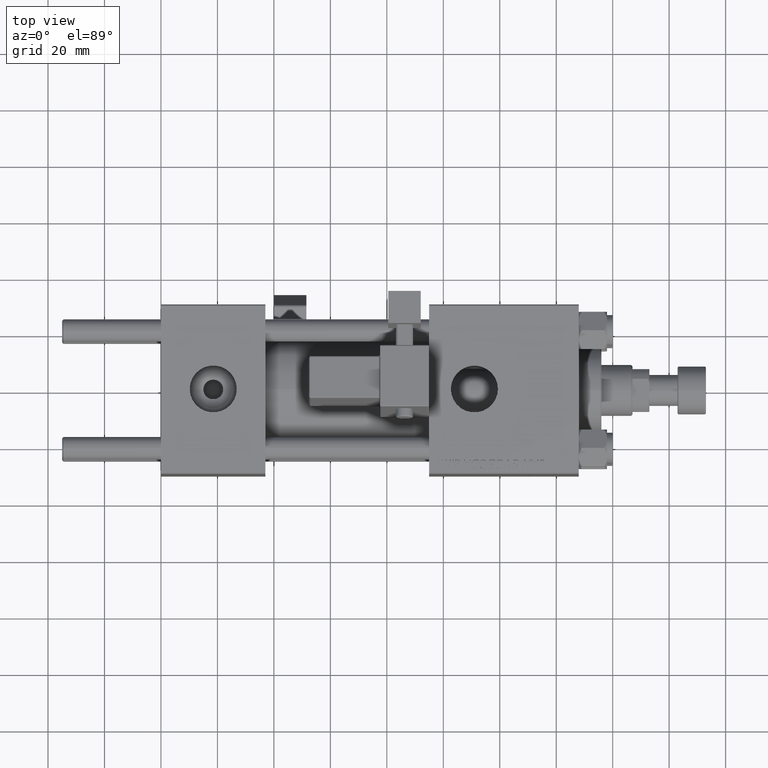
[diagram: clean part render]
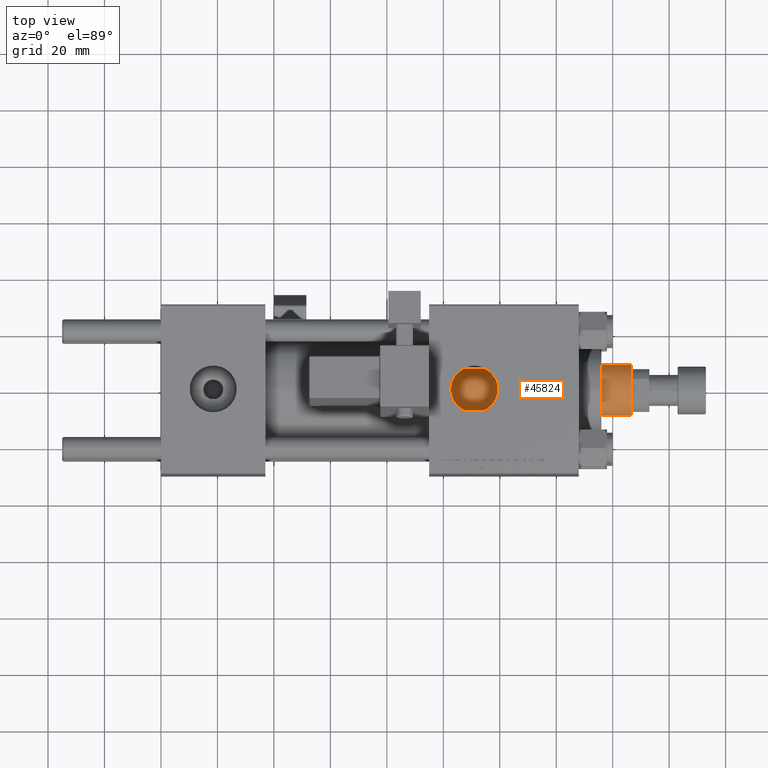
[diagram: same view with one face highlighted and labeled with its STEP entity id]
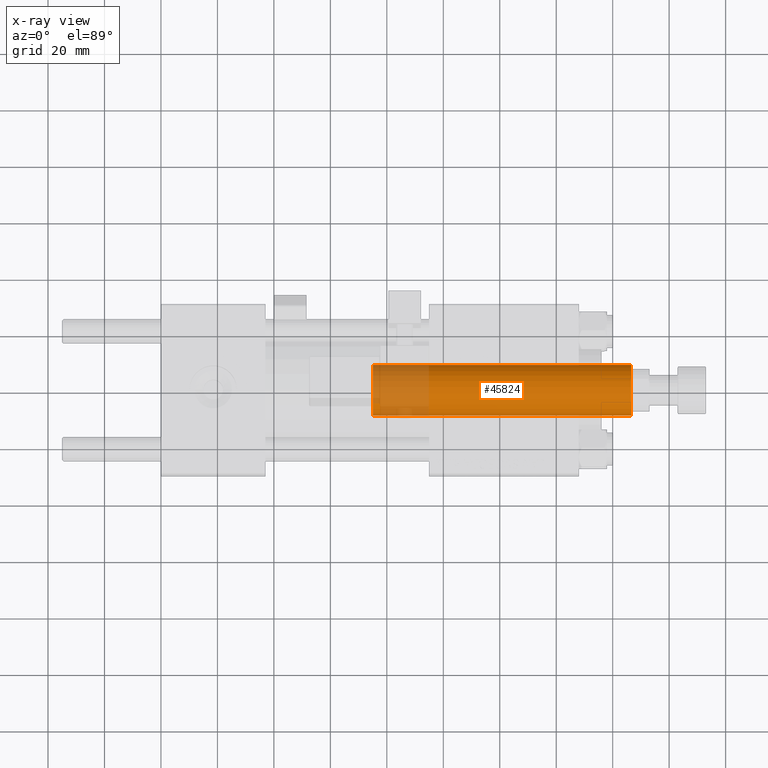
[diagram: x-ray of the same camera — body ghosted, the highlighted face saturated]
A machine part, top view. The second image highlights one B-rep face of the part: STEP entity #45824.
The next image is the same camera in x-ray: the body ghosted, the highlighted face saturated — about 22% of this face is hidden behind the body in this view.
In plain terms, the highlighted cylindrical surface (edge-blend (fillet) strip) has radius 9 mm, axis along (-1, 0, 0).
Its self-contained STEP definition (entity closure, byte-faithful):
#1150 = DIRECTION ( 'NONE',  ( 1.000000000000000000, 0.000000000000000000, 0.000000000000000000 ) ) ;
#1919 = CARTESIAN_POINT ( 'NONE',  ( 0.000000000000000000, 0.000000000000000000, 130.0000000000000000 ) ) ;
#2215 = CARTESIAN_POINT ( 'NONE',  ( 0.000000000000000000, 0.000000000000000000, 129.5000000000000000 ) ) ;
#4947 = VERTEX_POINT ( 'NONE', #52436 ) ;
#5652 = CARTESIAN_POINT ( 'NONE',  ( 9.000000000000000000, 1.102182119232617714E-15, 38.00000000000000000 ) ) ;
#8935 = DIRECTION ( 'NONE',  ( -0.000000000000000000, -0.000000000000000000, -1.000000000000000000 ) ) ;
#9080 = DIRECTION ( 'NONE',  ( -1.000000000000000000, 0.000000000000000000, 0.000000000000000000 ) ) ;
#10376 = CARTESIAN_POINT ( 'NONE',  ( 9.000000000000000000, 1.102182119232617714E-15, 129.5000000000000000 ) ) ;
#10377 = CARTESIAN_POINT ( 'NONE',  ( -9.000000000000000000, 0.000000000000000000, 130.0000000000000000 ) ) ;
#12311 = VECTOR ( 'NONE', #26596, 1000.000000000000000 ) ;
#12321 = CARTESIAN_POINT ( 'NONE',  ( 0.000000000000000000, 0.000000000000000000, 38.00000000000000000 ) ) ;
#14616 = EDGE_CURVE ( 'NONE', #19111, #4947, #36614, .T. ) ;
#15491 = ORIENTED_EDGE ( 'NONE', *, *, #26113, .T. ) ;
#16647 = AXIS2_PLACEMENT_3D ( 'NONE', #1919, #17585, #9080 ) ;
#17585 = DIRECTION ( 'NONE',  ( -0.000000000000000000, -0.000000000000000000, -1.000000000000000000 ) ) ;
#18812 = EDGE_CURVE ( 'NONE', #45061, #30860, #46808, .T. ) ;
#19111 = VERTEX_POINT ( 'NONE', #10376 ) ;
#25607 = AXIS2_PLACEMENT_3D ( 'NONE', #2215, #33796, #1150 ) ;
#26113 = EDGE_CURVE ( 'NONE', #4947, #45061, #46748, .T. ) ;
#26596 = DIRECTION ( 'NONE',  ( -0.000000000000000000, -0.000000000000000000, -1.000000000000000000 ) ) ;
#28499 = EDGE_CURVE ( 'NONE', #19111, #30860, #36290, .T. ) ;
#28533 = DIRECTION ( 'NONE',  ( 0.000000000000000000, 0.000000000000000000, 1.000000000000000000 ) ) ;
#29519 = ORIENTED_EDGE ( 'NONE', *, *, #28499, .F. ) ;
#30860 = VERTEX_POINT ( 'NONE', #5652 ) ;
#33796 = DIRECTION ( 'NONE',  ( 0.000000000000000000, 0.000000000000000000, -1.000000000000000000 ) ) ;
#34028 = FACE_OUTER_BOUND ( 'NONE', #47016, .T. ) ;
#36290 = LINE ( 'NONE', #45040, #46198 ) ;
#36614 = CIRCLE ( 'NONE', #25607, 9.000000000000000000 ) ;
#37509 = ORIENTED_EDGE ( 'NONE', *, *, #14616, .T. ) ;
#38398 = CARTESIAN_POINT ( 'NONE',  ( -9.000000000000000000, 0.000000000000000000, 38.00000000000000000 ) ) ;
#41530 = DIRECTION ( 'NONE',  ( 1.000000000000000000, 0.000000000000000000, 0.000000000000000000 ) ) ;
#41742 = AXIS2_PLACEMENT_3D ( 'NONE', #12321, #28533, #41530 ) ;
#42265 = CYLINDRICAL_SURFACE ( 'NONE', #16647, 9.000000000000000000 ) ;
#44745 = ORIENTED_EDGE ( 'NONE', *, *, #18812, .T. ) ;
#45040 = CARTESIAN_POINT ( 'NONE',  ( 9.000000000000000000, 1.102182119232617714E-15, 130.0000000000000000 ) ) ;
#45061 = VERTEX_POINT ( 'NONE', #38398 ) ;
#45824 = ADVANCED_FACE ( 'NONE', ( #34028 ), #42265, .T. ) ;
#46198 = VECTOR ( 'NONE', #8935, 1000.000000000000000 ) ;
#46748 = LINE ( 'NONE', #10377, #12311 ) ;
#46808 = CIRCLE ( 'NONE', #41742, 9.000000000000000000 ) ;
#47016 = EDGE_LOOP ( 'NONE', ( #29519, #37509, #15491, #44745 ) ) ;
#52436 = CARTESIAN_POINT ( 'NONE',  ( -9.000000000000000000, 0.000000000000000000, 129.5000000000000000 ) ) ;